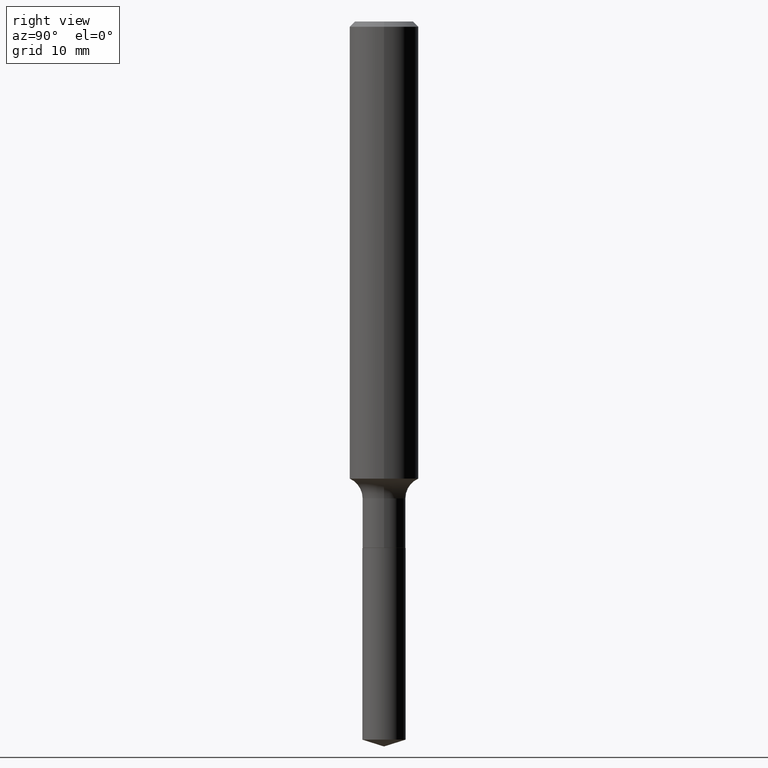
[diagram: clean part render]
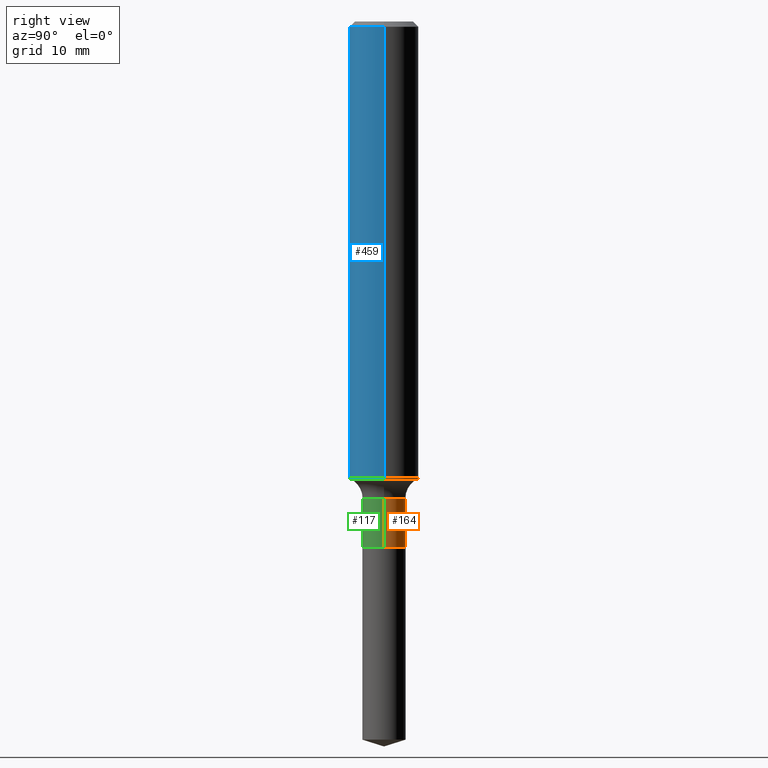
[diagram: same view with three faces highlighted in distinct colors, each labeled with its STEP entity id]
A machine part, right view with three faces highlighted in distinct colors.
Their STEP definitions:

[orange] entity #164 — the highlighted cylindrical surface (edge-blend (fillet) strip) has radius 1.9837 mm, axis along (-0, 0, 1).
#5 = DIRECTION ( 'NONE',  ( -2.445468806185136877E-29, 3.491481338843145188E-15, 1.000000000000000000 ) ) ;
#7 = ORIENTED_EDGE ( 'NONE', *, *, #157, .F. ) ;
#11 = DIRECTION ( 'NONE',  ( 1.000000000000000000, -6.982962677686267499E-15, 4.876176775795936353E-29 ) ) ;
#14 = EDGE_LOOP ( 'NONE', ( #460, #470, #332, #7 ) ) ;
#18 = DIRECTION ( 'NONE',  ( 1.000000000000000000, -6.982962677686266711E-15, 0.000000000000000000 ) ) ;
#20 = CARTESIAN_POINT ( 'NONE',  ( 0.07809999999999997500, -5.453693851272973378E-16, 3.808294061896625002E-30 ) ) ;
#47 = EDGE_CURVE ( 'NONE', #217, #50, #266, .T. ) ;
#50 = VERTEX_POINT ( 'NONE', #112 ) ;
#54 = AXIS2_PLACEMENT_3D ( 'NONE', #368, #212, #18 ) ;
#63 = VERTEX_POINT ( 'NONE', #412 ) ;
#105 = VERTEX_POINT ( 'NONE', #150 ) ;
#108 = LINE ( 'NONE', #223, #195 ) ;
#112 = CARTESIAN_POINT ( 'NONE',  ( -0.07809999999999997500, -5.786119956911341584E-15, -1.726600000000000135 ) ) ;
#141 = FACE_OUTER_BOUND ( 'NONE', #14, .T. ) ;
#150 = CARTESIAN_POINT ( 'NONE',  ( 0.07810000000000000275, -7.199085372560681196E-15, -1.905700000000000172 ) ) ;
#157 = EDGE_CURVE ( 'NONE', #105, #217, #243, .T. ) ;
#164 = ADVANCED_FACE ( 'NONE', ( #141 ), #203, .T. ) ;
#190 = DIRECTION ( 'NONE',  ( -2.445468806185136597E-29, 3.491481338843145583E-15, 1.000000000000000000 ) ) ;
#195 = VECTOR ( 'NONE', #274, 39.37007874015748143 ) ;
#203 = CYLINDRICAL_SURFACE ( 'NONE', #316, 0.07809999999999997500 ) ;
#212 = DIRECTION ( 'NONE',  ( -2.445468806185136597E-29, 3.491481338843145583E-15, 1.000000000000000000 ) ) ;
#217 = VERTEX_POINT ( 'NONE', #254 ) ;
#223 = CARTESIAN_POINT ( 'NONE',  ( -0.07809999999999997500, 5.549338766286380675E-16, -3.841688305489080574E-30 ) ) ;
#243 = LINE ( 'NONE', #20, #325 ) ;
#254 = CARTESIAN_POINT ( 'NONE',  ( 0.07809999999999997500, -6.573761064773872585E-15, -1.726600000000000135 ) ) ;
#266 = CIRCLE ( 'NONE', #361, 0.07809999999999997500 ) ;
#274 = DIRECTION ( 'NONE',  ( -2.445468806185136877E-29, 3.491481338843145188E-15, 1.000000000000000000 ) ) ;
#288 = CIRCLE ( 'NONE', #54, 0.07810000000000000275 ) ;
#311 = CARTESIAN_POINT ( 'NONE',  ( 4.222346440759256809E-29, -6.028391679646575149E-15, -1.726600000000000135 ) ) ;
#316 = AXIS2_PLACEMENT_3D ( 'NONE', #461, #370, #11 ) ;
#325 = VECTOR ( 'NONE', #5, 39.37007874015748143 ) ;
#332 = ORIENTED_EDGE ( 'NONE', *, *, #47, .F. ) ;
#344 = DIRECTION ( 'NONE',  ( 1.000000000000000000, -6.982962677686269077E-15, 0.000000000000000000 ) ) ;
#361 = AXIS2_PLACEMENT_3D ( 'NONE', #311, #190, #344 ) ;
#368 = CARTESIAN_POINT ( 'NONE',  ( 4.660329903947015004E-29, -6.653715987433382970E-15, -1.905700000000000172 ) ) ;
#370 = DIRECTION ( 'NONE',  ( -2.445468806185136597E-29, 3.491481338843145583E-15, 1.000000000000000000 ) ) ;
#387 = EDGE_CURVE ( 'NONE', #63, #50, #108, .T. ) ;
#412 = CARTESIAN_POINT ( 'NONE',  ( -0.07810000000000000275, -5.786119956911341584E-15, -1.905700000000000172 ) ) ;
#460 = ORIENTED_EDGE ( 'NONE', *, *, #465, .T. ) ;
#461 = CARTESIAN_POINT ( 'NONE',  ( 0.000000000000000000, 0.000000000000000000, 0.000000000000000000 ) ) ;
#465 = EDGE_CURVE ( 'NONE', #105, #63, #288, .T. ) ;
#470 = ORIENTED_EDGE ( 'NONE', *, *, #387, .T. ) ;

[blue] entity #459 — the highlighted cylindrical surface (edge-blend (fillet) strip) has radius 3.175 mm, axis along (-0, 0, 1).
#8 = EDGE_CURVE ( 'NONE', #174, #177, #281, .T. ) ;
#27 = DIRECTION ( 'NONE',  ( -2.445468806185136597E-29, 3.491481338843145583E-15, 1.000000000000000000 ) ) ;
#33 = LINE ( 'NONE', #313, #341 ) ;
#42 = EDGE_CURVE ( 'NONE', #220, #174, #33, .T. ) ;
#48 = CARTESIAN_POINT ( 'NONE',  ( -0.1250000000000003053, -4.890461520389817899E-15, -1.655068258793735314 ) ) ;
#58 = DIRECTION ( 'NONE',  ( 1.000000000000000000, -6.982962677686266711E-15, 4.876176775795935232E-29 ) ) ;
#64 = CARTESIAN_POINT ( 'NONE',  ( 0.1250000000000001110, -8.728703347107841277E-16, 6.095220969744924646E-30 ) ) ;
#74 = DIRECTION ( 'NONE',  ( 1.000000000000000000, -6.982962677686267499E-15, 0.000000000000000000 ) ) ;
#90 = CIRCLE ( 'NONE', #386, 0.1250000000000001943 ) ;
#135 = CARTESIAN_POINT ( 'NONE',  ( -0.1250000000000000000, -2.033874187896500512E-15, -0.01875000000000013461 ) ) ;
#152 = DIRECTION ( 'NONE',  ( -2.445468806185136877E-29, 3.491481338843145188E-15, 1.000000000000000000 ) ) ;
#168 = DIRECTION ( 'NONE',  ( -2.445468806185136597E-29, 3.491481338843145583E-15, 1.000000000000000000 ) ) ;
#172 = CARTESIAN_POINT ( 'NONE',  ( 0.1250000000000000000, -9.383356098140928781E-16, -0.01875000000000013461 ) ) ;
#174 = VERTEX_POINT ( 'NONE', #135 ) ;
#177 = VERTEX_POINT ( 'NONE', #172 ) ;
#204 = ORIENTED_EDGE ( 'NONE', *, *, #249, .T. ) ;
#209 = VECTOR ( 'NONE', #478, 39.37007874015748143 ) ;
#220 = VERTEX_POINT ( 'NONE', #48 ) ;
#221 = AXIS2_PLACEMENT_3D ( 'NONE', #401, #257, #58 ) ;
#246 = FACE_OUTER_BOUND ( 'NONE', #462, .T. ) ;
#249 = EDGE_CURVE ( 'NONE', #220, #423, #90, .T. ) ;
#257 = DIRECTION ( 'NONE',  ( -2.445468806185136597E-29, 3.491481338843145583E-15, 1.000000000000000000 ) ) ;
#281 = CIRCLE ( 'NONE', #392, 0.1250000000000000000 ) ;
#290 = CYLINDRICAL_SURFACE ( 'NONE', #221, 0.1250000000000001110 ) ;
#302 = EDGE_CURVE ( 'NONE', #423, #177, #340, .T. ) ;
#313 = CARTESIAN_POINT ( 'NONE',  ( -0.1250000000000001110, 8.881784197001260212E-16, -6.148668862818637832E-30 ) ) ;
#340 = LINE ( 'NONE', #64, #209 ) ;
#341 = VECTOR ( 'NONE', #152, 39.37007874015748143 ) ;
#359 = CARTESIAN_POINT ( 'NONE',  ( 4.585254011597163874E-31, -6.546527510330944066E-17, -0.01875000000000013461 ) ) ;
#374 = CARTESIAN_POINT ( 'NONE',  ( 0.1250000000000003053, -6.651510274800731204E-15, -1.655068258793735314 ) ) ;
#386 = AXIS2_PLACEMENT_3D ( 'NONE', #446, #27, #74 ) ;
#390 = ORIENTED_EDGE ( 'NONE', *, *, #42, .F. ) ;
#392 = AXIS2_PLACEMENT_3D ( 'NONE', #359, #168, #402 ) ;
#394 = ORIENTED_EDGE ( 'NONE', *, *, #302, .T. ) ;
#401 = CARTESIAN_POINT ( 'NONE',  ( 0.000000000000000000, 0.000000000000000000, 0.000000000000000000 ) ) ;
#402 = DIRECTION ( 'NONE',  ( 1.000000000000000000, -6.982962677686266711E-15, 0.000000000000000000 ) ) ;
#405 = ORIENTED_EDGE ( 'NONE', *, *, #8, .F. ) ;
#423 = VERTEX_POINT ( 'NONE', #374 ) ;
#446 = CARTESIAN_POINT ( 'NONE',  ( 4.047417798987228218E-29, -5.778639940089945498E-15, -1.655068258793735314 ) ) ;
#459 = ADVANCED_FACE ( 'NONE', ( #246 ), #290, .T. ) ;
#462 = EDGE_LOOP ( 'NONE', ( #390, #204, #394, #405 ) ) ;
#478 = DIRECTION ( 'NONE',  ( -2.445468806185136877E-29, 3.491481338843145188E-15, 1.000000000000000000 ) ) ;

[green] entity #117 — the highlighted cylindrical surface (edge-blend (fillet) strip) has radius 1.9837 mm, axis along (-0, 0, 1).
#5 = DIRECTION ( 'NONE',  ( -2.445468806185136877E-29, 3.491481338843145188E-15, 1.000000000000000000 ) ) ;
#20 = CARTESIAN_POINT ( 'NONE',  ( 0.07809999999999997500, -5.453693851272973378E-16, 3.808294061896625002E-30 ) ) ;
#23 = ORIENTED_EDGE ( 'NONE', *, *, #157, .T. ) ;
#50 = VERTEX_POINT ( 'NONE', #112 ) ;
#63 = VERTEX_POINT ( 'NONE', #412 ) ;
#68 = DIRECTION ( 'NONE',  ( -2.445468806185136597E-29, 3.491481338843145583E-15, 1.000000000000000000 ) ) ;
#70 = AXIS2_PLACEMENT_3D ( 'NONE', #308, #68, #107 ) ;
#73 = DIRECTION ( 'NONE',  ( -2.445468806185136597E-29, 3.491481338843145583E-15, 1.000000000000000000 ) ) ;
#79 = CYLINDRICAL_SURFACE ( 'NONE', #100, 0.07809999999999997500 ) ;
#96 = CARTESIAN_POINT ( 'NONE',  ( 4.660329903947015004E-29, -6.653715987433382970E-15, -1.905700000000000172 ) ) ;
#100 = AXIS2_PLACEMENT_3D ( 'NONE', #411, #73, #234 ) ;
#105 = VERTEX_POINT ( 'NONE', #150 ) ;
#107 = DIRECTION ( 'NONE',  ( 1.000000000000000000, -6.982962677686269077E-15, 0.000000000000000000 ) ) ;
#108 = LINE ( 'NONE', #223, #195 ) ;
#112 = CARTESIAN_POINT ( 'NONE',  ( -0.07809999999999997500, -5.786119956911341584E-15, -1.726600000000000135 ) ) ;
#117 = ADVANCED_FACE ( 'NONE', ( #415 ), #79, .T. ) ;
#118 = AXIS2_PLACEMENT_3D ( 'NONE', #96, #324, #251 ) ;
#125 = ORIENTED_EDGE ( 'NONE', *, *, #387, .F. ) ;
#150 = CARTESIAN_POINT ( 'NONE',  ( 0.07810000000000000275, -7.199085372560681196E-15, -1.905700000000000172 ) ) ;
#157 = EDGE_CURVE ( 'NONE', #105, #217, #243, .T. ) ;
#195 = VECTOR ( 'NONE', #274, 39.37007874015748143 ) ;
#217 = VERTEX_POINT ( 'NONE', #254 ) ;
#223 = CARTESIAN_POINT ( 'NONE',  ( -0.07809999999999997500, 5.549338766286380675E-16, -3.841688305489080574E-30 ) ) ;
#231 = CIRCLE ( 'NONE', #70, 0.07809999999999997500 ) ;
#232 = EDGE_CURVE ( 'NONE', #63, #105, #334, .T. ) ;
#234 = DIRECTION ( 'NONE',  ( 1.000000000000000000, -6.982962677686267499E-15, 4.876176775795936353E-29 ) ) ;
#239 = EDGE_LOOP ( 'NONE', ( #125, #430, #23, #422 ) ) ;
#243 = LINE ( 'NONE', #20, #325 ) ;
#251 = DIRECTION ( 'NONE',  ( 1.000000000000000000, -6.982962677686266711E-15, 0.000000000000000000 ) ) ;
#254 = CARTESIAN_POINT ( 'NONE',  ( 0.07809999999999997500, -6.573761064773872585E-15, -1.726600000000000135 ) ) ;
#274 = DIRECTION ( 'NONE',  ( -2.445468806185136877E-29, 3.491481338843145188E-15, 1.000000000000000000 ) ) ;
#308 = CARTESIAN_POINT ( 'NONE',  ( 4.222346440759256809E-29, -6.028391679646575149E-15, -1.726600000000000135 ) ) ;
#324 = DIRECTION ( 'NONE',  ( -2.445468806185136597E-29, 3.491481338843145583E-15, 1.000000000000000000 ) ) ;
#325 = VECTOR ( 'NONE', #5, 39.37007874015748143 ) ;
#334 = CIRCLE ( 'NONE', #118, 0.07810000000000000275 ) ;
#383 = EDGE_CURVE ( 'NONE', #50, #217, #231, .T. ) ;
#387 = EDGE_CURVE ( 'NONE', #63, #50, #108, .T. ) ;
#411 = CARTESIAN_POINT ( 'NONE',  ( 0.000000000000000000, 0.000000000000000000, 0.000000000000000000 ) ) ;
#412 = CARTESIAN_POINT ( 'NONE',  ( -0.07810000000000000275, -5.786119956911341584E-15, -1.905700000000000172 ) ) ;
#415 = FACE_OUTER_BOUND ( 'NONE', #239, .T. ) ;
#422 = ORIENTED_EDGE ( 'NONE', *, *, #383, .F. ) ;
#430 = ORIENTED_EDGE ( 'NONE', *, *, #232, .T. ) ;